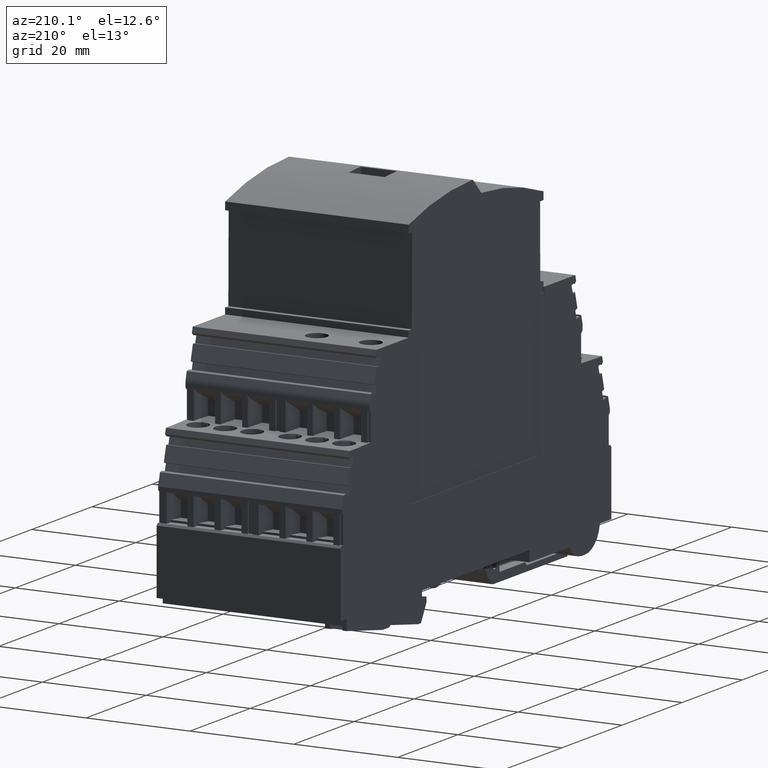
[diagram: clean part render]
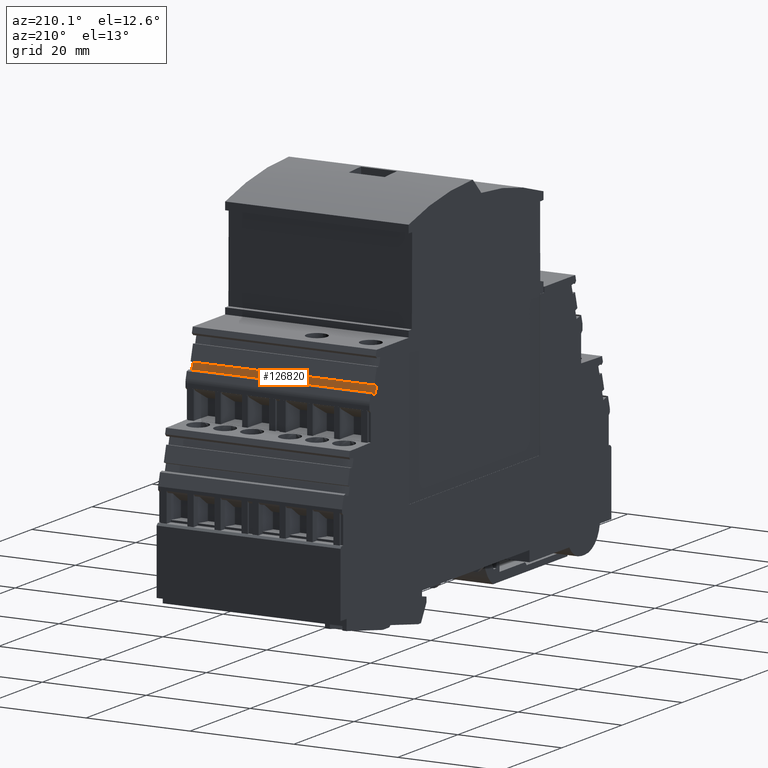
[diagram: same view with one face highlighted and labeled with its STEP entity id]
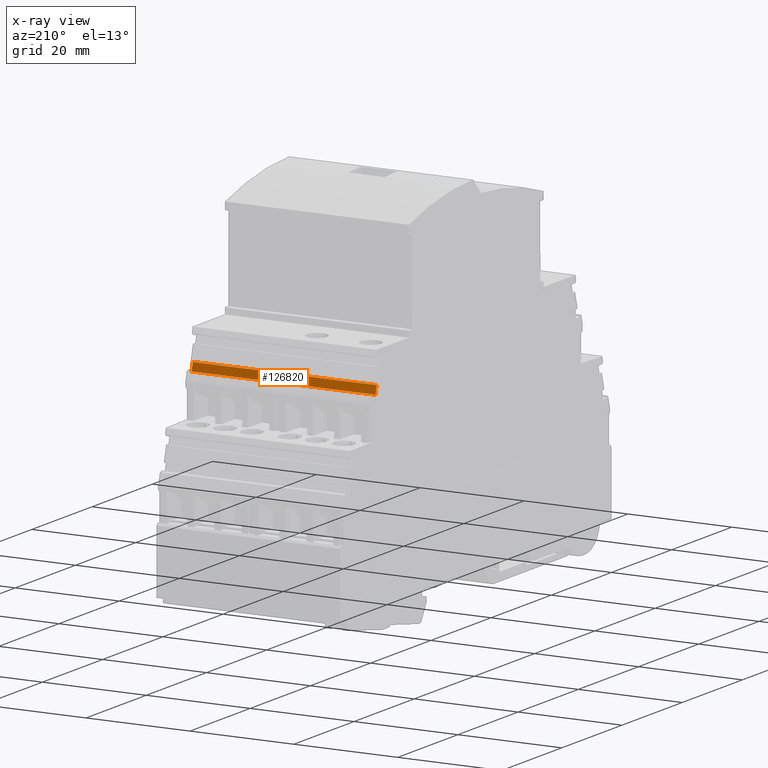
[diagram: x-ray of the same camera — body ghosted, the highlighted face saturated]
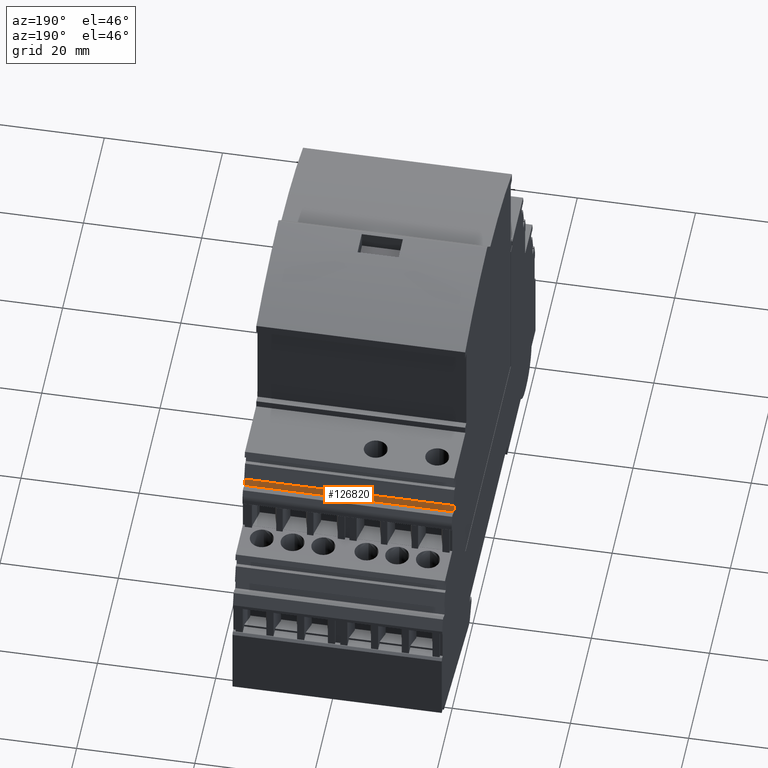
[diagram: same view with one face highlighted and labeled with its STEP entity id]
A machine part, auxiliary view. The second image highlights one B-rep face of the part: STEP entity #126820.
The next image is the same camera in x-ray: the body ghosted, the highlighted face saturated — about 0% of this face is hidden behind the body in this view.
A second angle (auxiliary view) of the same face is appended — the face is thin or edge-on in the first view.
In plain terms, the highlighted planar face has unit normal (0, -0.9646, -0.2639).
Its self-contained STEP definition (entity closure, byte-faithful):
#19950=CARTESIAN_POINT('',(164.846807743444,195.854475601931,
87.3021431980011));
#19960=VERTEX_POINT('',#19950);
#19990=CARTESIAN_POINT('',(185.543207287397,121.225669795631,
87.3021431980011));
#20000=DIRECTION('',(-0.267238376078142,0.963630453208655,
-2.83934108490164E-16));
#20010=VECTOR('',#20000,1.);
#20020=LINE('',#19990,#20010);
#20030=CARTESIAN_POINT('',(165.2735562974,194.315670028835,
87.3021431980011));
#20040=VERTEX_POINT('',#20030);
#20050=EDGE_CURVE('',#20040,#19960,#20020,.T.);
#116100=CARTESIAN_POINT('',(165.2735562974,194.315670028835,
51.9021431980011));
#116110=VERTEX_POINT('',#116100);
#116140=CARTESIAN_POINT('',(174.400171401278,161.406159134936,
51.9021431980011));
#116150=DIRECTION('',(0.267238376078142,-0.963630453208655,
2.83931734400591E-16));
#116160=VECTOR('',#116150,1.);
#116170=LINE('',#116140,#116160);
#116180=CARTESIAN_POINT('',(164.846807743444,195.854475601931,
51.9021431980011));
#116190=VERTEX_POINT('',#116180);
#116200=EDGE_CURVE('',#116190,#116110,#116170,.T.);
#126610=CARTESIAN_POINT('',(165.13993710936,194.797485255439,
51.9021431980011));
#126620=DIRECTION('',(-0.963630453208655,-0.267238376078142,
-9.06461337169898E-16));
#126630=DIRECTION('',(0.267238376078142,-0.963630453208655,
2.83931734400591E-16));
#126640=AXIS2_PLACEMENT_3D('',#126610,#126620,#126630);
#126650=PLANE('',#126640);
#126660=ORIENTED_EDGE('',*,*,#116200,.F.);
#126670=CARTESIAN_POINT('',(165.2735562974,194.315670028835,
103.152143198094));
#126680=DIRECTION('',(-9.40929702887336E-16,9.2493774486152E-19,1.));
#126690=VECTOR('',#126680,1.);
#126700=LINE('',#126670,#126690);
#126710=EDGE_CURVE('',#116110,#20040,#126700,.T.);
#126720=ORIENTED_EDGE('',*,*,#126710,.F.);
#126730=ORIENTED_EDGE('',*,*,#20050,.F.);
#126740=CARTESIAN_POINT('',(164.846807743444,195.854475601931,
103.152143198094));
#126750=DIRECTION('',(-9.40929702887336E-16,9.24937744861527E-19,1.));
#126760=VECTOR('',#126750,1.);
#126770=LINE('',#126740,#126760);
#126780=EDGE_CURVE('',#116190,#19960,#126770,.T.);
#126790=ORIENTED_EDGE('',*,*,#126780,.T.);
#126800=EDGE_LOOP('',(#126790,#126730,#126720,#126660));
#126810=FACE_OUTER_BOUND('',#126800,.T.);
#126820=ADVANCED_FACE('',(#126810),#126650,.F.);